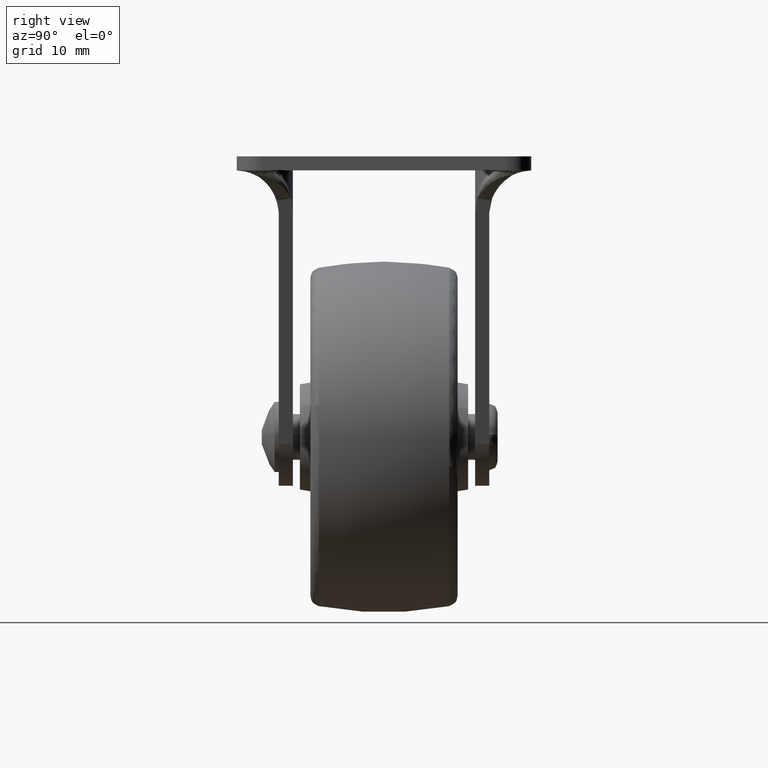
[diagram: clean part render]
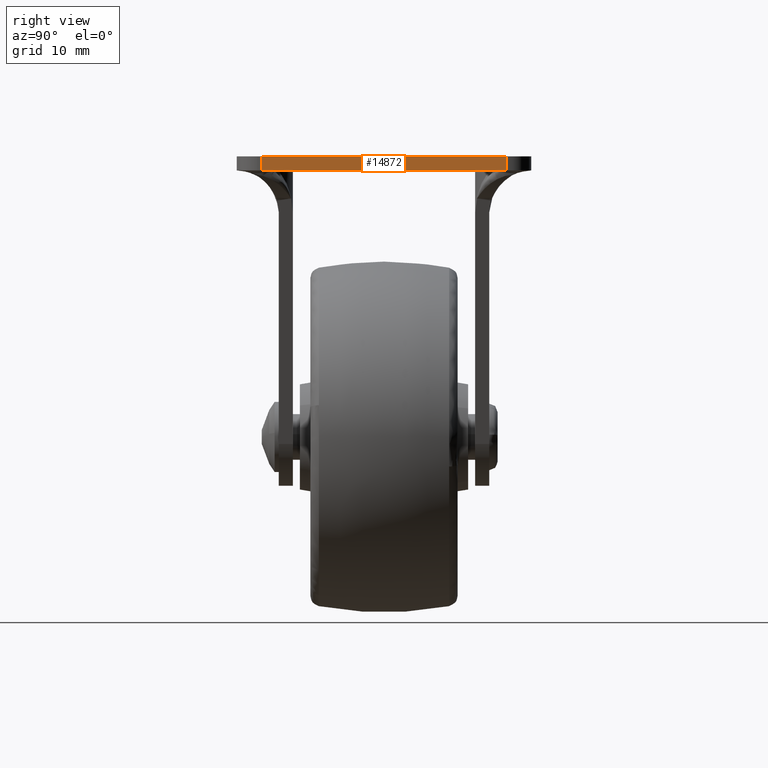
[diagram: same view with one face highlighted and labeled with its STEP entity id]
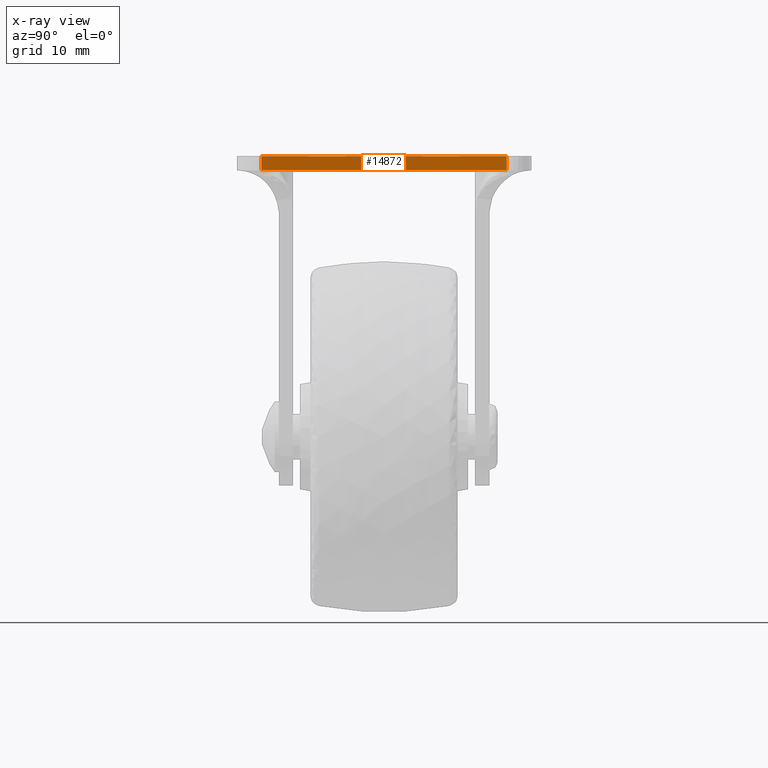
[diagram: x-ray of the same camera — body ghosted, the highlighted face saturated]
A machine part, right view. The second image highlights one B-rep face of the part: STEP entity #14872.
The next image is the same camera in x-ray: the body ghosted, the highlighted face saturated — about 0% of this face is hidden behind the body in this view.
In plain terms, the highlighted face is a freeform B-spline surface patch.
Its self-contained STEP definition (entity closure, byte-faithful):
#14273=CARTESIAN_POINT('',(35.0,17.500000000000000,52.500000000000000));
#14274=VERTEX_POINT('',#14273);
#14288=CARTESIAN_POINT('',(35.0,-17.500000000000000,52.500000000000000));
#14289=VERTEX_POINT('',#14288);
#14290=CARTESIAN_POINT('',(35.0,17.500000000000000,52.500000000000000));
#14291=CARTESIAN_POINT('',(35.0,-17.500000000000000,52.500000000000000));
#14292=QUASI_UNIFORM_CURVE('',1,(#14290,#14291),.UNSPECIFIED.,.F.,.U.);
#14293=EDGE_CURVE('',#14274,#14289,#14292,.T.);
#14773=CARTESIAN_POINT('',(35.0,-17.500000000000000,54.500000000000000));
#14774=VERTEX_POINT('',#14773);
#14775=CARTESIAN_POINT('',(35.0,-17.500000000000000,52.500000000000000));
#14776=CARTESIAN_POINT('',(35.0,-17.500000000000000,54.500000000000000));
#14777=QUASI_UNIFORM_CURVE('',1,(#14775,#14776),.UNSPECIFIED.,.F.,.U.);
#14778=EDGE_CURVE('',#14289,#14774,#14777,.T.);
#14810=CARTESIAN_POINT('',(35.0,17.500000000000000,54.500000000000000));
#14811=VERTEX_POINT('',#14810);
#14812=CARTESIAN_POINT('',(35.0,17.500000000000000,52.500000000000000));
#14813=CARTESIAN_POINT('',(35.0,17.500000000000000,54.500000000000000));
#14814=QUASI_UNIFORM_CURVE('',1,(#14812,#14813),.UNSPECIFIED.,.F.,.U.);
#14815=EDGE_CURVE('',#14274,#14811,#14814,.T.);
#14857=CARTESIAN_POINT('',(35.0,-19.248249932163208,52.400100003876382));
#14858=CARTESIAN_POINT('',(35.0,-19.248249932163208,54.599900049767797));
#14859=CARTESIAN_POINT('',(35.0,19.248250870936360,52.400100003876382));
#14860=CARTESIAN_POINT('',(35.0,19.248250870936360,54.599900049767797));
#14861=B_SPLINE_SURFACE_WITH_KNOTS('',1,1,((#14857,#14859),(#14858,#14860)),.UNSPECIFIED.,.F.,.F.,.U.,(2,2),(2,2),(0.0,2.199800045891422),(0.0,38.496500803099579),.UNSPECIFIED.);
#14862=ORIENTED_EDGE('',*,*,#14293,.F.);
#14863=ORIENTED_EDGE('',*,*,#14815,.T.);
#14864=CARTESIAN_POINT('',(35.0,17.500000000000000,54.500000000000000));
#14865=CARTESIAN_POINT('',(35.0,-17.500000000000000,54.500000000000000));
#14866=QUASI_UNIFORM_CURVE('',1,(#14864,#14865),.UNSPECIFIED.,.F.,.U.);
#14867=EDGE_CURVE('',#14811,#14774,#14866,.T.);
#14868=ORIENTED_EDGE('',*,*,#14867,.T.);
#14869=ORIENTED_EDGE('',*,*,#14778,.F.);
#14870=EDGE_LOOP('',(#14862,#14863,#14868,#14869));
#14871=FACE_OUTER_BOUND('',#14870,.T.);
#14872=ADVANCED_FACE('',(#14871),#14861,.F.);